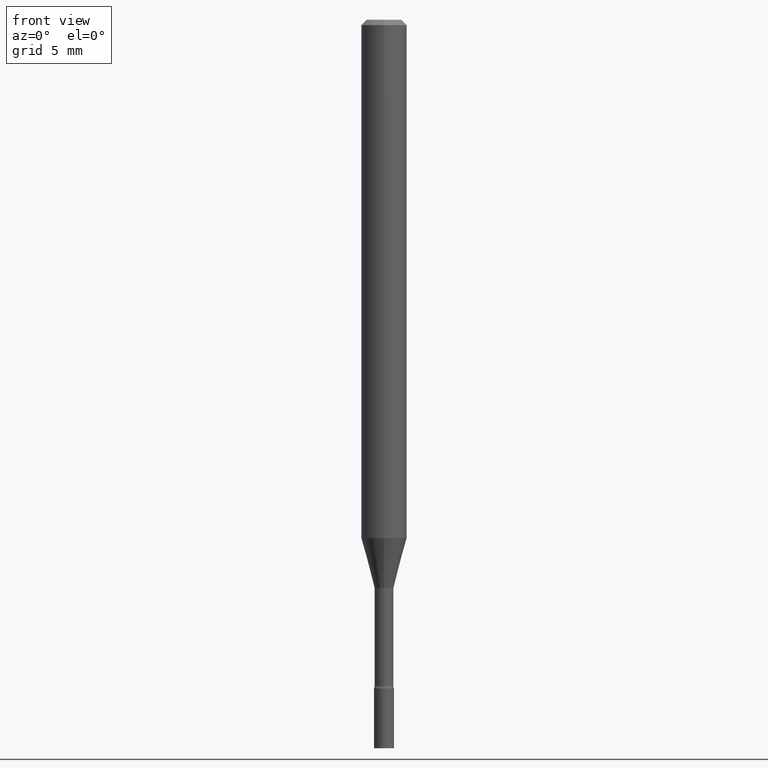
[diagram: clean part render]
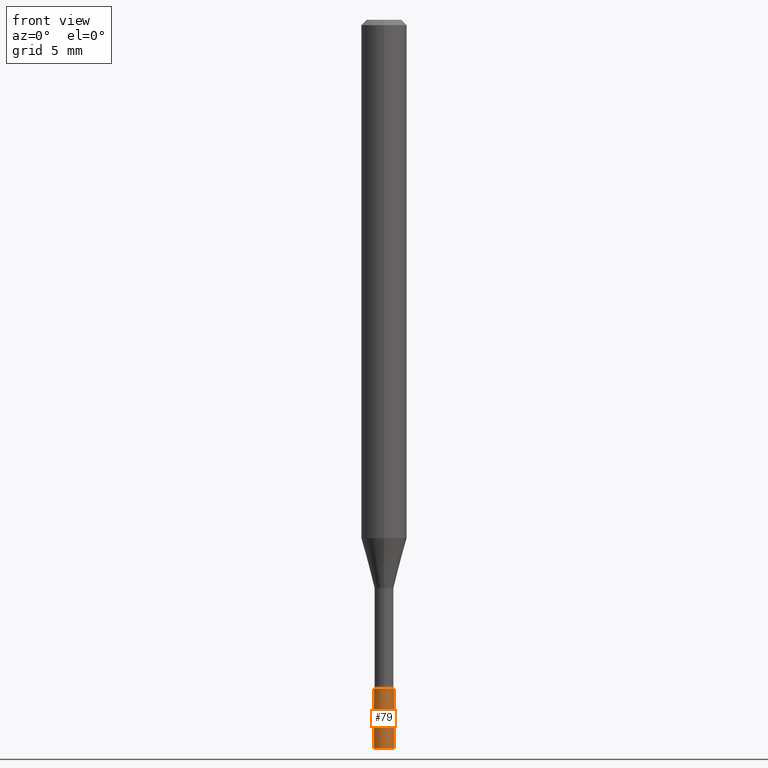
[diagram: same view with one face highlighted and labeled with its STEP entity id]
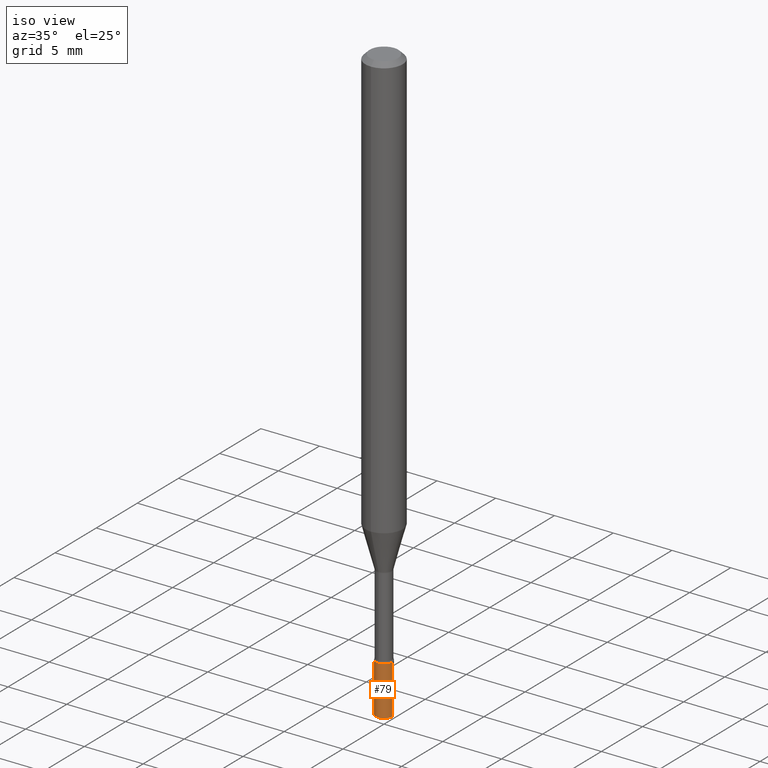
[diagram: same view with one face highlighted and labeled with its STEP entity id]
A machine part, front view. The second image highlights one B-rep face of the part: STEP entity #79.
A second angle (iso view) of the same face is appended — the face is thin or edge-on in the first view.
In plain terms, the highlighted cylindrical surface (edge-blend (fillet) strip) has radius 0.6985 mm, axis along (-0, 0, 1).
Its self-contained STEP definition (entity closure, byte-faithful):
#7 = EDGE_CURVE ( 'NONE', #286, #110, #428, .T. ) ;
#20 = DIRECTION ( 'NONE',  ( 1.000000000000000000, -6.982962677686279332E-15, 0.000000000000000000 ) ) ;
#39 = EDGE_LOOP ( 'NONE', ( #163, #297, #255, #105 ) ) ;
#62 = DIRECTION ( 'NONE',  ( -2.445468806185136597E-29, 3.491481338843145583E-15, 1.000000000000000000 ) ) ;
#71 = LINE ( 'NONE', #327, #434 ) ;
#79 = ADVANCED_FACE ( 'NONE', ( #497 ), #379, .T. ) ;
#81 = CARTESIAN_POINT ( 'NONE',  ( 4.487435259349726059E-29, -6.406868256777172111E-15, -1.834999999999999964 ) ) ;
#100 = LINE ( 'NONE', #272, #438 ) ;
#105 = ORIENTED_EDGE ( 'NONE', *, *, #7, .F. ) ;
#107 = CARTESIAN_POINT ( 'NONE',  ( 0.000000000000000000, 0.000000000000000000, 0.000000000000000000 ) ) ;
#108 = CARTESIAN_POINT ( 'NONE',  ( -0.02750000000000000014, -6.499516214897703913E-15, -2.000000000000000000 ) ) ;
#110 = VERTEX_POINT ( 'NONE', #457 ) ;
#115 = AXIS2_PLACEMENT_3D ( 'NONE', #81, #246, #244 ) ;
#124 = EDGE_CURVE ( 'NONE', #508, #210, #294, .T. ) ;
#137 = CARTESIAN_POINT ( 'NONE',  ( 0.02750000000000000014, -7.174994151322663658E-15, -2.000000000000000000 ) ) ;
#163 = ORIENTED_EDGE ( 'NONE', *, *, #445, .F. ) ;
#192 = CARTESIAN_POINT ( 'NONE',  ( 4.890937612370273194E-29, -6.982962677686291165E-15, -2.000000000000000000 ) ) ;
#210 = VERTEX_POINT ( 'NONE', #137 ) ;
#215 = AXIS2_PLACEMENT_3D ( 'NONE', #107, #313, #269 ) ;
#221 = DIRECTION ( 'NONE',  ( -2.445468806185136877E-29, 3.491481338843145188E-15, 1.000000000000000000 ) ) ;
#244 = DIRECTION ( 'NONE',  ( 1.000000000000000000, -6.982962677686279332E-15, 0.000000000000000000 ) ) ;
#246 = DIRECTION ( 'NONE',  ( -2.445468806185136597E-29, 3.491481338843145583E-15, 1.000000000000000000 ) ) ;
#252 = AXIS2_PLACEMENT_3D ( 'NONE', #192, #62, #20 ) ;
#255 = ORIENTED_EDGE ( 'NONE', *, *, #342, .T. ) ;
#269 = DIRECTION ( 'NONE',  ( 1.000000000000000000, -6.982962677686266711E-15, 4.876176775795935793E-29 ) ) ;
#272 = CARTESIAN_POINT ( 'NONE',  ( -0.02750000000000000014, 1.953992523340275521E-16, -1.352707149820099181E-30 ) ) ;
#286 = VERTEX_POINT ( 'NONE', #324 ) ;
#294 = CIRCLE ( 'NONE', #252, 0.02750000000000000014 ) ;
#297 = ORIENTED_EDGE ( 'NONE', *, *, #124, .T. ) ;
#313 = DIRECTION ( 'NONE',  ( -2.445468806185136597E-29, 3.491481338843145583E-15, 1.000000000000000000 ) ) ;
#324 = CARTESIAN_POINT ( 'NONE',  ( -0.02750000000000000014, -6.499516214897703913E-15, -1.834999999999999964 ) ) ;
#327 = CARTESIAN_POINT ( 'NONE',  ( 0.02750000000000000014, -1.920314736363723444E-16, 1.340948613343882413E-30 ) ) ;
#342 = EDGE_CURVE ( 'NONE', #210, #110, #71, .T. ) ;
#379 = CYLINDRICAL_SURFACE ( 'NONE', #215, 0.02750000000000000014 ) ;
#428 = CIRCLE ( 'NONE', #115, 0.02750000000000000014 ) ;
#434 = VECTOR ( 'NONE', #485, 39.37007874015748143 ) ;
#438 = VECTOR ( 'NONE', #221, 39.37007874015748143 ) ;
#445 = EDGE_CURVE ( 'NONE', #508, #286, #100, .T. ) ;
#457 = CARTESIAN_POINT ( 'NONE',  ( 0.02750000000000000014, -6.598899730413544603E-15, -1.834999999999999964 ) ) ;
#485 = DIRECTION ( 'NONE',  ( -2.445468806185136877E-29, 3.491481338843145188E-15, 1.000000000000000000 ) ) ;
#497 = FACE_OUTER_BOUND ( 'NONE', #39, .T. ) ;
#508 = VERTEX_POINT ( 'NONE', #108 ) ;